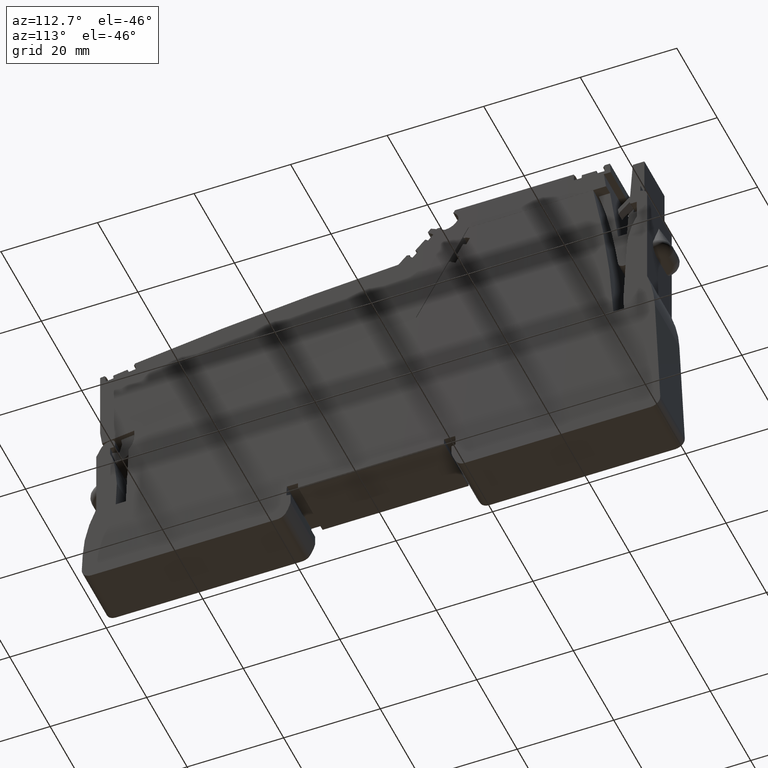
[diagram: clean part render]
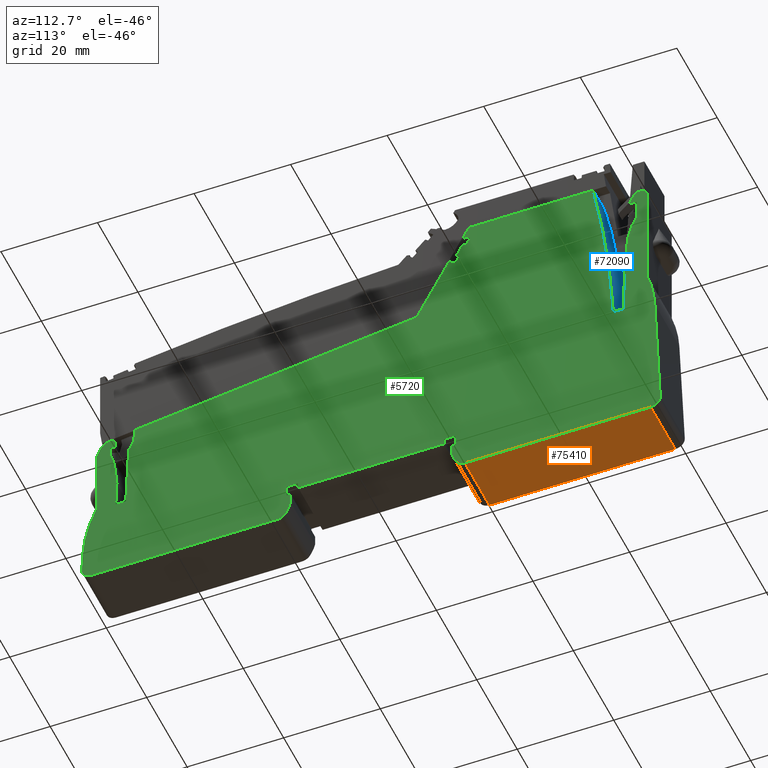
[diagram: same view with three faces highlighted in distinct colors, each labeled with its STEP entity id]
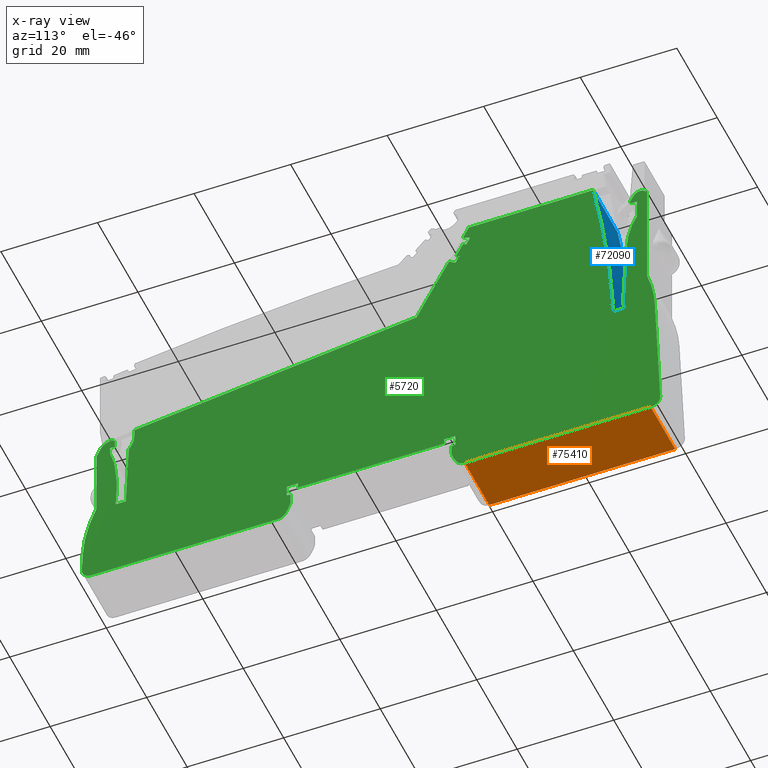
[diagram: x-ray of the same camera — body ghosted, the three highlighted faces saturated]
A machine part, auxiliary view with three faces highlighted in distinct colors.
The next image is the same camera in x-ray (body ghosted, the three faces saturated) — at least one of them is partly hidden behind the body in this view.
Their STEP definitions:

[orange] entity #75410 — the highlighted planar face has unit normal (-0, 0, 1).
#2520=CARTESIAN_POINT('',(294.439392952716,-62.9542780967925,36.45));
#2530=VERTEX_POINT('',#2520);
#2560=CARTESIAN_POINT('',(217.456642799386,-62.9542780967925,36.45));
#2570=DIRECTION('',(1.,0.,0.));
#2580=VECTOR('',#2570,1.);
#2590=LINE('',#2560,#2580);
#2600=CARTESIAN_POINT('',(255.962554944728,-62.9542780967925,36.45));
#2610=VERTEX_POINT('',#2600);
#2620=EDGE_CURVE('',#2610,#2530,#2590,.T.);
#11300=CARTESIAN_POINT('',(255.962554944728,-62.9542780967925,24.3));
#11310=VERTEX_POINT('',#11300);
#11340=CARTESIAN_POINT('',(5.6843418860808E-14,-62.9542780967925,24.3));
#11350=DIRECTION('',(1.,0.,0.));
#11360=VECTOR('',#11350,1.);
#11370=LINE('',#11340,#11360);
#11380=CARTESIAN_POINT('',(294.439392952716,-62.9542780967925,24.3));
#11390=VERTEX_POINT('',#11380);
#11400=EDGE_CURVE('',#11310,#11390,#11370,.T.);
#74100=CARTESIAN_POINT('',(294.439392952716,-62.9542780967925,24.3));
#74110=DIRECTION('',(0.,1.19110369467609E-44,1.));
#74120=VECTOR('',#74110,1.);
#74130=LINE('',#74100,#74120);
#74140=EDGE_CURVE('',#11390,#2530,#74130,.T.);
#75060=CARTESIAN_POINT('',(255.962554944728,-62.9542780967925,24.3));
#75070=DIRECTION('',(0.,1.19110369467609E-44,1.));
#75080=VECTOR('',#75070,1.);
#75090=LINE('',#75060,#75080);
#75100=EDGE_CURVE('',#11310,#2610,#75090,.T.);
#75300=CARTESIAN_POINT('',(255.962554944728,-62.9542780967925,24.3));
#75310=DIRECTION('',(0.,1.,-1.19110369467609E-44));
#75320=DIRECTION('',(-1.,0.,0.));
#75330=AXIS2_PLACEMENT_3D('',#75300,#75310,#75320);
#75340=PLANE('',#75330);
#75350=ORIENTED_EDGE('',*,*,#11400,.T.);
#75360=ORIENTED_EDGE('',*,*,#75100,.F.);
#75370=ORIENTED_EDGE('',*,*,#2620,.F.);
#75380=ORIENTED_EDGE('',*,*,#74140,.T.);
#75390=EDGE_LOOP('',(#75380,#75370,#75360,#75350));
#75400=FACE_OUTER_BOUND('',#75390,.T.);
#75410=ADVANCED_FACE('',(#75400),#75340,.F.);

[blue] entity #72090 — the highlighted cylindrical surface (partial cylindrical patch) has radius 244.2 mm, axis along (1, 0, 0).
#1340=CARTESIAN_POINT('',(282.529908005194,1.44572190319565,36.45));
#1350=VERTEX_POINT('',#1340);
#1380=CARTESIAN_POINT('',(42.7786202088592,-44.954278096795,36.45));
#1390=DIRECTION('',(0.,1.19110369467609E-44,1.));
#1400=DIRECTION('',(1.,1.05193631583234E-14,-1.25296523235185E-58));
#1410=AXIS2_PLACEMENT_3D('',#1380,#1390,#1400);
#1420=CIRCLE('',#1410,244.2);
#1430=CARTESIAN_POINT('',(286.717034567893,-33.6542780967924,36.45));
#1440=VERTEX_POINT('',#1430);
#1450=EDGE_CURVE('',#1440,#1350,#1420,.T.);
#6830=CARTESIAN_POINT('',(286.717034567893,-33.6542780967924,24.3));
#6840=VERTEX_POINT('',#6830);
#6870=CARTESIAN_POINT('',(42.7786202088592,-44.954278096795,24.3));
#6880=DIRECTION('',(0.,1.19110369467609E-44,1.));
#6890=DIRECTION('',(1.,1.05193631583234E-14,-1.25296523235185E-58));
#6900=AXIS2_PLACEMENT_3D('',#6870,#6880,#6890);
#6910=CIRCLE('',#6900,244.2);
#6920=CARTESIAN_POINT('',(282.529908005194,1.44572190319566,24.3));
#6930=VERTEX_POINT('',#6920);
#6940=EDGE_CURVE('',#6840,#6930,#6910,.T.);
#71750=CARTESIAN_POINT('',(282.529908005194,1.44572190319566,24.3));
#71760=DIRECTION('',(0.,1.19110369467609E-44,1.));
#71770=VECTOR('',#71760,1.);
#71780=LINE('',#71750,#71770);
#71790=EDGE_CURVE('',#6930,#1350,#71780,.T.);
#71930=CARTESIAN_POINT('',(42.7786202088592,-44.954278096795,24.3));
#71940=DIRECTION('',(0.,1.19110369467609E-44,1.));
#71950=DIRECTION('',(1.,1.05193631583234E-14,-1.25296523235185E-58));
#71960=AXIS2_PLACEMENT_3D('',#71930,#71940,#71950);
#71970=CYLINDRICAL_SURFACE('',#71960,244.2);
#71980=ORIENTED_EDGE('',*,*,#6940,.T.);
#71990=CARTESIAN_POINT('',(286.717034567893,-33.6542780967924,24.3));
#72000=DIRECTION('',(0.,1.19110369467609E-44,1.));
#72010=VECTOR('',#72000,1.);
#72020=LINE('',#71990,#72010);
#72030=EDGE_CURVE('',#6840,#1440,#72020,.T.);
#72040=ORIENTED_EDGE('',*,*,#72030,.F.);
#72050=ORIENTED_EDGE('',*,*,#1450,.F.);
#72060=ORIENTED_EDGE('',*,*,#71790,.T.);
#72070=EDGE_LOOP('',(#72060,#72050,#72040,#71980));
#72080=FACE_OUTER_BOUND('',#72070,.T.);
#72090=ADVANCED_FACE('',(#72080),#71970,.T.);

[green] entity #5720 — the highlighted planar face has unit normal (1, 0, 0).
#10=CARTESIAN_POINT('',(250.551745894944,-13.6190661492394,36.45));
#20=DIRECTION('',(-0.,0.,1.));
#30=DIRECTION('',(1.,-1.05193631583234E-14,0.));
#40=AXIS2_PLACEMENT_3D('',#10,#20,#30);
#50=PLANE('',#40);
#60=CARTESIAN_POINT('',(222.829193999581,-62.4038624519245,36.45));
#70=DIRECTION('',(-0.469471562785816,-0.882947592858967,
1.05168214005968E-44));
#80=VECTOR('',#70,1.);
#90=LINE('',#60,#80);
#100=CARTESIAN_POINT('',(252.619553665123,-6.3763446167434,36.45));
#110=VERTEX_POINT('',#100);
#120=CARTESIAN_POINT('',(245.956559916687,-18.9076132978659,36.45));
#130=VERTEX_POINT('',#120);
#140=EDGE_CURVE('',#110,#130,#90,.T.);
#150=ORIENTED_EDGE('',*,*,#140,.T.);
#160=CARTESIAN_POINT('',(217.456642799385,-7.60426052174302,36.45));
#170=DIRECTION('',(-0.999390827019097,-0.0348994967024531,
4.15689194646281E-46));
#180=VECTOR('',#170,1.);
#190=LINE('',#160,#180);
#200=CARTESIAN_POINT('',(252.971522788557,-6.36405358411578,36.45));
#210=VERTEX_POINT('',#200);
#220=EDGE_CURVE('',#210,#110,#190,.T.);
#230=ORIENTED_EDGE('',*,*,#220,.T.);
#240=CARTESIAN_POINT('',(252.976757713062,-6.51396220816862,36.45));
#250=DIRECTION('',(0.,1.19110369467609E-44,1.));
#260=DIRECTION('',(1.,1.05193631583234E-14,-1.25296523235185E-58));
#270=AXIS2_PLACEMENT_3D('',#240,#250,#260);
#280=CIRCLE('',#270,0.149999999999978);
#290=CARTESIAN_POINT('',(253.109199851991,-6.58438294258651,36.45));
#300=VERTEX_POINT('',#290);
#310=EDGE_CURVE('',#300,#210,#280,.T.);
#320=ORIENTED_EDGE('',*,*,#310,.T.);
#330=CARTESIAN_POINT('',(223.429456126324,-62.4038624519245,36.45));
#340=DIRECTION('',(0.469471562787342,0.882947592858155,
-1.05168214005871E-44));
#350=VECTOR('',#340,1.);
#360=LINE('',#330,#350);
#370=CARTESIAN_POINT('',(253.103331457456,-6.59541978749719,36.45));
#380=VERTEX_POINT('',#370);
#390=EDGE_CURVE('',#380,#300,#360,.T.);
#400=ORIENTED_EDGE('',*,*,#390,.T.);
#410=CARTESIAN_POINT('',(217.456642799385,12.3582607794984,36.45));
#420=DIRECTION('',(-0.882947592858936,0.469471562785873,
-5.59189312979613E-45));
#430=VECTOR('',#420,1.);
#440=LINE('',#410,#430);
#450=CARTESIAN_POINT('',(254.048085381815,-7.09775435967803,36.45));
#460=VERTEX_POINT('',#450);
#470=EDGE_CURVE('',#460,#380,#440,.T.);
#480=ORIENTED_EDGE('',*,*,#470,.T.);
#490=CARTESIAN_POINT('',(224.641306080665,-62.4038624519244,36.45));
#500=DIRECTION('',(-0.469471562786055,-0.88294759285884,
1.05168214005953E-44));
#510=VECTOR('',#500,1.);
#520=LINE('',#490,#510);
#530=CARTESIAN_POINT('',(254.797776775253,-5.68778991519738,36.45));
#540=VERTEX_POINT('',#530);
#550=EDGE_CURVE('',#540,#460,#520,.T.);
#560=ORIENTED_EDGE('',*,*,#550,.T.);
#570=CARTESIAN_POINT('',(217.456642799385,18.5618260273502,36.45));
#580=DIRECTION('',(0.838670567945287,-0.544639035015238,
6.48721566871473E-45));
#590=VECTOR('',#580,1.);
#600=LINE('',#570,#590);
#610=CARTESIAN_POINT('',(254.166371160303,-5.27775031446077,36.45));
#620=VERTEX_POINT('',#610);
#630=EDGE_CURVE('',#620,#540,#600,.T.);
#640=ORIENTED_EDGE('',*,*,#630,.T.);
#650=CARTESIAN_POINT('',(223.791878542665,-62.4038624519245,36.45));
#660=DIRECTION('',(-0.469471562785848,-0.88294759285895,
1.05168214005966E-44));
#670=VECTOR('',#660,1.);
#680=LINE('',#650,#670);
#690=CARTESIAN_POINT('',(255.57478584866,-2.62890753588397,36.45));
#700=VERTEX_POINT('',#690);
#710=EDGE_CURVE('',#700,#620,#680,.T.);
#720=ORIENTED_EDGE('',*,*,#710,.T.);
#730=CARTESIAN_POINT('',(217.456642799385,13.551284229208,36.45));
#740=DIRECTION('',(-0.920504853452444,0.390731128489265,
-4.65401290768523E-45));
#750=VECTOR('',#740,1.);
#760=LINE('',#730,#750);
#770=CARTESIAN_POINT('',(256.267801622998,-2.92307527932637,36.45));
#780=VERTEX_POINT('',#770);
#790=EDGE_CURVE('',#780,#700,#760,.T.);
#800=ORIENTED_EDGE('',*,*,#790,.T.);
#810=CARTESIAN_POINT('',(224.641306080672,-62.4038624519244,36.45));
#820=DIRECTION('',(-0.469471562785964,-0.882947592858888,
1.05168214005959E-44));
#830=VECTOR('',#820,1.);
#840=LINE('',#810,#830);
#850=CARTESIAN_POINT('',(257.017493016436,-1.51311083484534,36.45));
#860=VERTEX_POINT('',#850);
#870=EDGE_CURVE('',#860,#780,#840,.T.);
#880=ORIENTED_EDGE('',*,*,#870,.T.);
#890=CARTESIAN_POINT('',(217.456642799385,19.5217663500998,36.45));
#900=DIRECTION('',(0.882947592859,-0.469471562785753,
5.59189312979471E-45));
#910=VECTOR('',#900,1.);
#920=LINE('',#890,#910);
#930=CARTESIAN_POINT('',(256.072739092077,-1.01077626266459,36.45));
#940=VERTEX_POINT('',#930);
#950=EDGE_CURVE('',#940,#860,#920,.T.);
#960=ORIENTED_EDGE('',*,*,#950,.T.);
#970=CARTESIAN_POINT('',(223.429456126156,-62.4038624519245,36.45));
#980=DIRECTION('',(0.469471562789092,0.882947592857225,
-1.0516821400576E-44));
#990=VECTOR('',#980,1.);
#1000=LINE('',#970,#990);
#1010=CARTESIAN_POINT('',(256.066870697542,-1.02181310757526,36.45));
#1020=VERTEX_POINT('',#1010);
#1030=EDGE_CURVE('',#1020,#940,#1000,.T.);
#1040=ORIENTED_EDGE('',*,*,#1030,.T.);
#1050=CARTESIAN_POINT('',(255.934428558613,-0.951392373157361,36.45));
#1060=DIRECTION('',(0.,1.19110369467609E-44,1.));
#1070=DIRECTION('',(1.,1.05193631583234E-14,-1.25296523235185E-58));
#1080=AXIS2_PLACEMENT_3D('',#1050,#1060,#1070);
#1090=CIRCLE('',#1080,0.150000000000037);
#1100=CARTESIAN_POINT('',(255.80722134419,-1.03088026279237,36.45));
#1110=VERTEX_POINT('',#1100);
#1120=EDGE_CURVE('',#1110,#1020,#1090,.T.);
#1130=ORIENTED_EDGE('',*,*,#1120,.T.);
#1140=CARTESIAN_POINT('',(294.157316949414,-62.4038624519237,36.45));
#1150=DIRECTION('',(0.529919264232796,-0.848048096156682,
1.01011322059525E-44));
#1160=VECTOR('',#1150,1.);
#1170=LINE('',#1140,#1160);
#1180=CARTESIAN_POINT('',(255.620592435979,-0.732211576865332,36.45));
#1190=VERTEX_POINT('',#1180);
#1200=EDGE_CURVE('',#1190,#1110,#1170,.T.);
#1210=ORIENTED_EDGE('',*,*,#1200,.T.);
#1220=CARTESIAN_POINT('',(222.829193999575,-62.4038624519245,36.45));
#1230=DIRECTION('',(-0.469471562785901,-0.882947592858922,
1.05168214005963E-44));
#1240=VECTOR('',#1230,1.);
#1250=LINE('',#1220,#1240);
#1260=CARTESIAN_POINT('',(256.778620208859,1.44572190319565,36.45));
#1270=VERTEX_POINT('',#1260);
#1280=EDGE_CURVE('',#1270,#1190,#1250,.T.);
#1290=ORIENTED_EDGE('',*,*,#1280,.T.);
#1300=CARTESIAN_POINT('',(217.456642799385,1.44572190319565,36.45));
#1310=DIRECTION('',(-1.,0.,0.));
#1320=VECTOR('',#1310,1.);
#1330=LINE('',#1300,#1320);
#1340=CARTESIAN_POINT('',(282.529908005194,1.44572190319565,36.45));
#1350=VERTEX_POINT('',#1340);
#1360=EDGE_CURVE('',#1350,#1270,#1330,.T.);
#1370=ORIENTED_EDGE('',*,*,#1360,.T.);
#1380=CARTESIAN_POINT('',(42.7786202088592,-44.954278096795,36.45));
#1390=DIRECTION('',(0.,1.19110369467609E-44,1.));
#1400=DIRECTION('',(1.,1.05193631583234E-14,-1.25296523235185E-58));
#1410=AXIS2_PLACEMENT_3D('',#1380,#1390,#1400);
#1420=CIRCLE('',#1410,244.2);
#1430=CARTESIAN_POINT('',(286.717034567893,-33.6542780967924,36.45));
#1440=VERTEX_POINT('',#1430);
#1450=EDGE_CURVE('',#1440,#1350,#1420,.T.);
#1460=ORIENTED_EDGE('',*,*,#1450,.T.);
#1470=CARTESIAN_POINT('',(217.456642799386,-33.6542780967924,36.45));
#1480=DIRECTION('',(-1.,0.,0.));
#1490=VECTOR('',#1480,1.);
#1500=LINE('',#1470,#1490);
#1510=CARTESIAN_POINT('',(288.89935458164,-33.6542780967924,36.45));
#1520=VERTEX_POINT('',#1510);
#1530=EDGE_CURVE('',#1520,#1440,#1500,.T.);
#1540=ORIENTED_EDGE('',*,*,#1530,.T.);
#1550=CARTESIAN_POINT('',(290.154588542814,-62.4038624519238,36.45));
#1560=DIRECTION('',(0.0436193873653793,-0.999048221581856,
1.18997002788573E-44));
#1570=VECTOR('',#1560,1.);
#1580=LINE('',#1550,#1570);
#1590=CARTESIAN_POINT('',(288.781470035787,-30.9542780967934,36.45));
#1600=VERTEX_POINT('',#1590);
#1610=EDGE_CURVE('',#1600,#1520,#1580,.T.);
#1620=ORIENTED_EDGE('',*,*,#1610,.T.);
#1630=CARTESIAN_POINT('',(287.214385619435,-62.4038624519238,36.45));
#1640=DIRECTION('',(-0.0497667179338586,-0.99876086917044,
1.18962776136682E-44));
#1650=VECTOR('',#1640,1.);
#1660=LINE('',#1630,#1650);
#1670=CARTESIAN_POINT('',(289.495566915125,-16.6231739072968,36.45));
#1680=VERTEX_POINT('',#1670);
#1690=EDGE_CURVE('',#1680,#1600,#1660,.T.);
#1700=ORIENTED_EDGE('',*,*,#1690,.T.);
#1710=CARTESIAN_POINT('',(306.174873430273,-17.4542780967923,36.45));
#1720=DIRECTION('',(0.,1.19110369467609E-44,1.));
#1730=DIRECTION('',(1.,0.,0.));
#1740=AXIS2_PLACEMENT_3D('',#1710,#1720,#1730);
#1750=CIRCLE('',#1740,16.6999999999999);
#1760=CARTESIAN_POINT('',(291.578620208859,-9.34013045847767,36.45));
#1770=VERTEX_POINT('',#1760);
#1780=EDGE_CURVE('',#1770,#1680,#1750,.T.);
#1790=ORIENTED_EDGE('',*,*,#1780,.T.);
#1800=CARTESIAN_POINT('',(291.578620208859,-62.4038624519237,36.45));
#1810=DIRECTION('',(0.,-1.,1.19110369467609E-44));
#1820=VECTOR('',#1810,1.);
#1830=LINE('',#1800,#1820);
#1840=CARTESIAN_POINT('',(291.578620208859,-5.35427809679246,36.45));
#1850=VERTEX_POINT('',#1840);
#1860=EDGE_CURVE('',#1850,#1770,#1830,.T.);
#1870=ORIENTED_EDGE('',*,*,#1860,.T.);
#1880=CARTESIAN_POINT('',(217.456642799385,-5.35427809679246,36.45));
#1890=DIRECTION('',(1.,0.,0.));
#1900=VECTOR('',#1890,1.);
#1910=LINE('',#1880,#1900);
#1920=CARTESIAN_POINT('',(290.512594805074,-5.35427809679246,36.45));
#1930=VERTEX_POINT('',#1920);
#1940=EDGE_CURVE('',#1930,#1850,#1910,.T.);
#1950=ORIENTED_EDGE('',*,*,#1940,.T.);
#1960=CARTESIAN_POINT('',(290.512594805074,-4.95427809679246,36.45));
#1970=DIRECTION('',(0.,1.19110369467609E-44,1.));
#1980=DIRECTION('',(1.,0.,0.));
#1990=AXIS2_PLACEMENT_3D('',#1960,#1970,#1980);
#2000=CIRCLE('',#1990,0.4);
#2010=CARTESIAN_POINT('',(290.166184643561,-4.75427809679242,36.45));
#2020=VERTEX_POINT('',#2010);
#2030=EDGE_CURVE('',#2020,#1930,#2000,.T.);
#2040=ORIENTED_EDGE('',*,*,#2030,.T.);
#2050=CARTESIAN_POINT('',(256.88218159745,-62.4038624519241,36.45));
#2060=DIRECTION('',(-0.500000000000064,-0.866025403784402,
1.03152605813096E-44));
#2070=VECTOR('',#2060,1.);
#2080=LINE('',#2050,#2070);
#2090=CARTESIAN_POINT('',(290.948540359412,-3.39919824734572,36.45));
#2100=VERTEX_POINT('',#2090);
#2110=EDGE_CURVE('',#2100,#2020,#2080,.T.);
#2120=ORIENTED_EDGE('',*,*,#2110,.T.);
#2130=CARTESIAN_POINT('',(292.238779907752,-4.14411839789921,36.45));
#2140=DIRECTION('',(0.,1.19110369467609E-44,1.));
#2150=DIRECTION('',(1.,0.,0.));
#2160=AXIS2_PLACEMENT_3D('',#2130,#2140,#2150);
#2170=CIRCLE('',#2160,1.48984030110678);
#2180=CARTESIAN_POINT('',(293.728620208859,-4.14411839789921,36.45));
#2190=VERTEX_POINT('',#2180);
#2200=EDGE_CURVE('',#2190,#2100,#2170,.T.);
#2210=ORIENTED_EDGE('',*,*,#2200,.T.);
#2220=CARTESIAN_POINT('',(293.728620208859,-62.4038624519237,36.45));
#2230=DIRECTION('',(0.,1.,-1.19110369467609E-44));
#2240=VECTOR('',#2230,1.);
#2250=LINE('',#2220,#2240);
#2260=CARTESIAN_POINT('',(293.728620208859,-26.6633289582232,36.45));
#2270=VERTEX_POINT('',#2260);
#2280=EDGE_CURVE('',#2270,#2190,#2250,.T.);
#2290=ORIENTED_EDGE('',*,*,#2280,.T.);
#2300=CARTESIAN_POINT('',(265.338905386229,-36.3599310584282,36.45));
#2310=DIRECTION('',(0.,1.19110369467609E-44,1.));
#2320=DIRECTION('',(1.,0.,0.));
#2330=AXIS2_PLACEMENT_3D('',#2300,#2310,#2320);
#2340=CIRCLE('',#2330,29.9999999999995);
#2350=CARTESIAN_POINT('',(295.310352033684,-35.0513494374681,36.45));
#2360=VERTEX_POINT('',#2350);
#2370=EDGE_CURVE('',#2360,#2270,#2340,.T.);
#2380=ORIENTED_EDGE('',*,*,#2370,.T.);
#2390=CARTESIAN_POINT('',(296.504588542813,-62.4038624519237,36.45));
#2400=DIRECTION('',(-0.0436193873653358,0.999048221581858,
-1.18997002788573E-44));
#2410=VECTOR('',#2400,1.);
#2420=LINE('',#2390,#2410);
#2430=CARTESIAN_POINT('',(296.437489395879,-60.8670393220619,36.45));
#2440=VERTEX_POINT('',#2430);
#2450=EDGE_CURVE('',#2440,#2360,#2420,.T.);
#2460=ORIENTED_EDGE('',*,*,#2450,.T.);
#2470=CARTESIAN_POINT('',(294.439392952716,-60.9542780967925,36.45));
#2480=DIRECTION('',(0.,-1.19110369467609E-44,-1.));
#2490=DIRECTION('',(-1.,0.,0.));
#2500=AXIS2_PLACEMENT_3D('',#2470,#2480,#2490);
#2510=CIRCLE('',#2500,2.);
#2520=CARTESIAN_POINT('',(294.439392952716,-62.9542780967925,36.45));
#2530=VERTEX_POINT('',#2520);
#2540=EDGE_CURVE('',#2440,#2530,#2510,.T.);
#2550=ORIENTED_EDGE('',*,*,#2540,.F.);
#2560=CARTESIAN_POINT('',(217.456642799386,-62.9542780967925,36.45));
#2570=DIRECTION('',(1.,0.,0.));
#2580=VECTOR('',#2570,1.);
#2590=LINE('',#2560,#2580);
#2600=CARTESIAN_POINT('',(255.962554944728,-62.9542780967925,36.45));
#2610=VERTEX_POINT('',#2600);
#2620=EDGE_CURVE('',#2610,#2530,#2590,.T.);
#2630=ORIENTED_EDGE('',*,*,#2620,.T.);
#2640=CARTESIAN_POINT('',(255.962554944728,-60.9542780967925,36.45));
#2650=DIRECTION('',(0.,1.19110369467609E-44,1.));
#2660=DIRECTION('',(1.,0.,0.));
#2670=AXIS2_PLACEMENT_3D('',#2640,#2650,#2660);
#2680=CIRCLE('',#2670,2.);
#2690=CARTESIAN_POINT('',(254.238270874293,-61.9676114301258,36.45));
#2700=VERTEX_POINT('',#2690);
#2710=EDGE_CURVE('',#2700,#2610,#2680,.T.);
#2720=ORIENTED_EDGE('',*,*,#2710,.T.);
#2730=CARTESIAN_POINT('',(262.428620208859,-57.1542780967929,36.45));
#2740=DIRECTION('',(0.,1.19110369467609E-44,1.));
#2750=DIRECTION('',(1.,0.,0.));
#2760=AXIS2_PLACEMENT_3D('',#2730,#2740,#2750);
#2770=CIRCLE('',#2760,9.5);
#2780=CARTESIAN_POINT('',(253.178620208859,-59.3193416062542,36.45));
#2790=VERTEX_POINT('',#2780);
#2800=EDGE_CURVE('',#2790,#2700,#2770,.T.);
#2810=ORIENTED_EDGE('',*,*,#2800,.T.);
#2820=CARTESIAN_POINT('',(253.178620208859,-62.4038624519241,36.45));
#2830=DIRECTION('',(0.,-1.,1.19110369467609E-44));
#2840=VECTOR('',#2830,1.);
#2850=LINE('',#2820,#2840);
#2860=CARTESIAN_POINT('',(253.178620208859,-57.2709062822754,36.45));
#2870=VERTEX_POINT('',#2860);
#2880=EDGE_CURVE('',#2870,#2790,#2850,.T.);
#2890=ORIENTED_EDGE('',*,*,#2880,.T.);
#2900=CARTESIAN_POINT('',(217.456642799386,-64.2145552941398,36.45));
#2910=DIRECTION('',(-0.981627183447662,-0.190808995376554,
2.27273299370448E-45));
#2920=VECTOR('',#2910,1.);
#2930=LINE('',#2900,#2920);
#2940=CARTESIAN_POINT('',(254.028620208859,-57.1056830195084,36.45));
#2950=VERTEX_POINT('',#2940);
#2960=EDGE_CURVE('',#2950,#2870,#2930,.T.);
#2970=ORIENTED_EDGE('',*,*,#2960,.T.);
#2980=CARTESIAN_POINT('',(254.028620208859,-62.4038624519241,36.45));
#2990=DIRECTION('',(0.,-1.,1.19110369467609E-44));
#3000=VECTOR('',#2990,1.);
#3010=LINE('',#2980,#3000);
#3020=CARTESIAN_POINT('',(254.028620208859,-55.9542780967929,36.45));
#3030=VERTEX_POINT('',#3020);
#3040=EDGE_CURVE('',#3030,#2950,#3010,.T.);
#3050=ORIENTED_EDGE('',*,*,#3040,.T.);
#3060=CARTESIAN_POINT('',(245.528620208859,-55.9542780967929,36.45));
#3070=DIRECTION('',(0.,1.19110369467609E-44,1.));
#3080=DIRECTION('',(1.,1.05193631583234E-14,-1.25296523235185E-58));
#3090=AXIS2_PLACEMENT_3D('',#3060,#3070,#3080);
#3100=CIRCLE('',#3090,8.50000000000005);
#3110=CARTESIAN_POINT('',(253.943488003424,-54.7542780967928,36.45));
#3120=VERTEX_POINT('',#3110);
#3130=EDGE_CURVE('',#3030,#3120,#3100,.T.);
#3140=ORIENTED_EDGE('',*,*,#3130,.F.);
#3150=CARTESIAN_POINT('',(0.,-54.7542780967928,36.45));
#3160=DIRECTION('',(1.,1.49241151755498E-102,0.));
#3170=VECTOR('',#3160,1.);
#3180=LINE('',#3150,#3170);
#3190=CARTESIAN_POINT('',(251.653620208859,-54.7542780967928,36.45));
#3200=VERTEX_POINT('',#3190);
#3210=EDGE_CURVE('',#3200,#3120,#3180,.T.);
#3220=ORIENTED_EDGE('',*,*,#3210,.T.);
#3230=CARTESIAN_POINT('',(251.653620208859,-62.4038624519242,36.45));
#3240=DIRECTION('',(-1.05193631583234E-14,1.,-1.19110369467609E-44));
#3250=VECTOR('',#3240,1.);
#3260=LINE('',#3230,#3250);
#3270=CARTESIAN_POINT('',(251.653620208859,-55.9542780967928,36.45));
#3280=VERTEX_POINT('',#3270);
#3290=EDGE_CURVE('',#3280,#3200,#3260,.T.);
#3300=ORIENTED_EDGE('',*,*,#3290,.T.);
#3310=CARTESIAN_POINT('',(217.456642799386,-55.9542780967932,36.45));
#3320=DIRECTION('',(1.,1.05193631583234E-14,-1.25296523235185E-58));
#3330=VECTOR('',#3320,1.);
#3340=LINE('',#3310,#3330);
#3350=CARTESIAN_POINT('',(221.403620208859,-55.9542780967931,36.45));
#3360=VERTEX_POINT('',#3350);
#3370=EDGE_CURVE('',#3360,#3280,#3340,.T.);
#3380=ORIENTED_EDGE('',*,*,#3370,.T.);
#3390=CARTESIAN_POINT('',(221.403620208859,-62.4038624519245,36.45));
#3400=DIRECTION('',(1.05193631583234E-14,-1.,1.19110369467609E-44));
#3410=VECTOR('',#3400,1.);
#3420=LINE('',#3390,#3410);
#3430=CARTESIAN_POINT('',(221.403620208859,-54.7542780967931,36.45));
#3440=VERTEX_POINT('',#3430);
#3450=EDGE_CURVE('',#3440,#3360,#3420,.T.);
#3460=ORIENTED_EDGE('',*,*,#3450,.T.);
#3470=CARTESIAN_POINT('',(0.,-54.7542780967937,36.45));
#3480=DIRECTION('',(1.,1.49241151755498E-102,0.));
#3490=VECTOR('',#3480,1.);
#3500=LINE('',#3470,#3490);
#3510=CARTESIAN_POINT('',(219.113752414295,-54.7542780967937,36.45));
#3520=VERTEX_POINT('',#3510);
#3530=EDGE_CURVE('',#3520,#3440,#3500,.T.);
#3540=ORIENTED_EDGE('',*,*,#3530,.T.);
#3550=CARTESIAN_POINT('',(227.528620208859,-55.9542780967931,36.45));
#3560=DIRECTION('',(0.,1.19110369467609E-44,1.));
#3570=DIRECTION('',(1.,1.05193631583234E-14,-1.25296523235185E-58));
#3580=AXIS2_PLACEMENT_3D('',#3550,#3560,#3570);
#3590=CIRCLE('',#3580,8.49999999999999);
#3600=CARTESIAN_POINT('',(219.028620208859,-55.9542780967931,36.45));
#3610=VERTEX_POINT('',#3600);
#3620=EDGE_CURVE('',#3520,#3610,#3590,.T.);
#3630=ORIENTED_EDGE('',*,*,#3620,.F.);
#3640=CARTESIAN_POINT('',(219.028620208859,-62.4038624519245,36.45));
#3650=DIRECTION('',(0.,1.,-1.19110369467609E-44));
#3660=VECTOR('',#3650,1.);
#3670=LINE('',#3640,#3660);
#3680=CARTESIAN_POINT('',(219.028620208859,-57.1056830195087,36.45));
#3690=VERTEX_POINT('',#3680);
#3700=EDGE_CURVE('',#3690,#3610,#3670,.T.);
#3710=ORIENTED_EDGE('',*,*,#3700,.T.);
#3720=CARTESIAN_POINT('',(217.456642799386,-56.8001215646977,36.45));
#3730=DIRECTION('',(-0.98162718344766,0.190808995376566,
-2.27273299370461E-45));
#3740=VECTOR('',#3730,1.);
#3750=LINE('',#3720,#3740);
#3760=CARTESIAN_POINT('',(219.878620208859,-57.2709062822758,36.45));
#3770=VERTEX_POINT('',#3760);
#3780=EDGE_CURVE('',#3770,#3690,#3750,.T.);
#3790=ORIENTED_EDGE('',*,*,#3780,.T.);
#3800=CARTESIAN_POINT('',(219.878620208859,-62.4038624519245,36.45));
#3810=DIRECTION('',(0.,1.,-1.19110369467609E-44));
#3820=VECTOR('',#3810,1.);
#3830=LINE('',#3800,#3820);
#3840=CARTESIAN_POINT('',(219.878620208859,-59.3193416062538,36.45));
#3850=VERTEX_POINT('',#3840);
#3860=EDGE_CURVE('',#3850,#3770,#3830,.T.);
#3870=ORIENTED_EDGE('',*,*,#3860,.T.);
#3880=CARTESIAN_POINT('',(210.628620208859,-57.1542780967929,36.45));
#3890=DIRECTION('',(0.,-1.19110369467609E-44,-1.));
#3900=DIRECTION('',(-1.,0.,0.));
#3910=AXIS2_PLACEMENT_3D('',#3880,#3890,#3900);
#3920=CIRCLE('',#3910,9.5);
#3930=CARTESIAN_POINT('',(218.818969543425,-61.9676114301258,36.45));
#3940=VERTEX_POINT('',#3930);
#3950=EDGE_CURVE('',#3850,#3940,#3920,.T.);
#3960=ORIENTED_EDGE('',*,*,#3950,.F.);
#3970=CARTESIAN_POINT('',(217.09468547299,-60.9542780967925,36.45));
#3980=DIRECTION('',(0.,-1.19110369467609E-44,-1.));
#3990=DIRECTION('',(-1.,0.,0.));
#4000=AXIS2_PLACEMENT_3D('',#3970,#3980,#3990);
#4010=CIRCLE('',#4000,2.);
#4020=CARTESIAN_POINT('',(217.09468547299,-62.9542780967929,36.45));
#4030=VERTEX_POINT('',#4020);
#4040=EDGE_CURVE('',#3940,#4030,#4010,.T.);
#4050=ORIENTED_EDGE('',*,*,#4040,.F.);
#4060=CARTESIAN_POINT('',(217.456642799386,-62.9542780967929,36.45));
#4070=DIRECTION('',(1.,0.,0.));
#4080=VECTOR('',#4070,1.);
#4090=LINE('',#4060,#4080);
#4100=CARTESIAN_POINT('',(178.617847465003,-62.9542780967929,36.45));
#4110=VERTEX_POINT('',#4100);
#4120=EDGE_CURVE('',#4110,#4030,#4090,.T.);
#4130=ORIENTED_EDGE('',*,*,#4120,.T.);
#4140=CARTESIAN_POINT('',(178.617847465003,-60.9542780967929,36.45));
#4150=DIRECTION('',(0.,-1.19110369467609E-44,-1.));
#4160=DIRECTION('',(-1.,-1.05193631583234E-14,1.25296523235185E-58));
#4170=AXIS2_PLACEMENT_3D('',#4140,#4150,#4160);
#4180=CIRCLE('',#4170,2.);
#4190=CARTESIAN_POINT('',(176.619751021839,-60.8670393220622,36.45));
#4200=VERTEX_POINT('',#4190);
#4210=EDGE_CURVE('',#4110,#4200,#4180,.T.);
#4220=ORIENTED_EDGE('',*,*,#4210,.F.);
#4230=CARTESIAN_POINT('',(176.552651874906,-62.403862451925,36.45));
#4240=DIRECTION('',(-0.0436193873653827,-0.999048221581856,
1.18997002788573E-44));
#4250=VECTOR('',#4240,1.);
#4260=LINE('',#4230,#4250);
#4270=CARTESIAN_POINT('',(176.802689507967,-56.6770591260145,36.45));
#4280=VERTEX_POINT('',#4270);
#4290=EDGE_CURVE('',#4280,#4200,#4260,.T.);
#4300=ORIENTED_EDGE('',*,*,#4290,.T.);
#4310=CARTESIAN_POINT('',(206.774136155416,-57.9856407469757,36.45));
#4320=DIRECTION('',(0.,1.19110369467609E-44,1.));
#4330=DIRECTION('',(1.,0.,0.));
#4340=AXIS2_PLACEMENT_3D('',#4310,#4320,#4330);
#4350=CIRCLE('',#4340,29.9999999999933);
#4360=CARTESIAN_POINT('',(179.617847465003,-45.2366806104567,36.45));
#4370=VERTEX_POINT('',#4360);
#4380=EDGE_CURVE('',#4370,#4280,#4350,.T.);
#4390=ORIENTED_EDGE('',*,*,#4380,.T.);
#4400=CARTESIAN_POINT('',(179.617847465003,-62.4038624519249,36.45));
#4410=DIRECTION('',(0.,-1.,1.19110369467609E-44));
#4420=VECTOR('',#4410,1.);
#4430=LINE('',#4400,#4420);
#4440=CARTESIAN_POINT('',(179.617847465003,-30.8305420435832,36.45));
#4450=VERTEX_POINT('',#4440);
#4460=EDGE_CURVE('',#4450,#4370,#4430,.T.);
#4470=ORIENTED_EDGE('',*,*,#4460,.T.);
#4480=CARTESIAN_POINT('',(164.248217843791,-62.4038624519251,36.45));
#4490=DIRECTION('',(-0.437687596700824,-0.899127114313798,
1.07095362784262E-44));
#4500=VECTOR('',#4490,1.);
#4510=LINE('',#4480,#4500);
#4520=CARTESIAN_POINT('',(180.530802423075,-28.9550889506996,36.45));
#4530=VERTEX_POINT('',#4520);
#4540=EDGE_CURVE('',#4530,#4450,#4510,.T.);
#4550=ORIENTED_EDGE('',*,*,#4540,.T.);
#4560=CARTESIAN_POINT('',(182.778620208859,-30.0493079424516,36.45));
#4570=DIRECTION('',(0.,1.19110369467609E-44,1.));
#4580=DIRECTION('',(1.,0.,0.));
#4590=AXIS2_PLACEMENT_3D('',#4560,#4570,#4580);
#4600=CIRCLE('',#4590,2.5);
#4610=CARTESIAN_POINT('',(182.452304728309,-27.5706957890171,36.45));
#4620=VERTEX_POINT('',#4610);
#4630=EDGE_CURVE('',#4620,#4530,#4600,.T.);
#4640=ORIENTED_EDGE('',*,*,#4630,.T.);
#4650=CARTESIAN_POINT('',(217.456642799386,-22.9622872555666,36.45));
#4660=DIRECTION('',(-0.991444861373812,-0.130526192220044,
1.55470229805296E-45));
#4670=VECTOR('',#4660,1.);
#4680=LINE('',#4650,#4670);
#4690=CARTESIAN_POINT('',(182.574199255083,-27.554648070125,36.45));
#4700=VERTEX_POINT('',#4690);
#4710=EDGE_CURVE('',#4700,#4620,#4680,.T.);
#4720=ORIENTED_EDGE('',*,*,#4710,.T.);
#4730=CARTESIAN_POINT('',(182.678620208859,-28.3478039592241,36.45));
#4740=DIRECTION('',(0.,1.19110369467609E-44,1.));
#4750=DIRECTION('',(1.,0.,0.));
#4760=AXIS2_PLACEMENT_3D('',#4730,#4740,#4750);
#4770=CIRCLE('',#4760,0.8);
#4780=CARTESIAN_POINT('',(183.478620208859,-28.3478039592241,36.45));
#4790=VERTEX_POINT('',#4780);
#4800=EDGE_CURVE('',#4790,#4700,#4770,.T.);
#4810=ORIENTED_EDGE('',*,*,#4800,.T.);
#4820=CARTESIAN_POINT('',(183.478620208859,-62.4038624519249,36.45));
#4830=DIRECTION('',(0.,1.,-1.19110369467609E-44));
#4840=VECTOR('',#4830,1.);
#4850=LINE('',#4820,#4840);
#4860=CARTESIAN_POINT('',(183.478620208859,-29.5542780967957,36.45));
#4870=VERTEX_POINT('',#4860);
#4880=EDGE_CURVE('',#4870,#4790,#4850,.T.);
#4890=ORIENTED_EDGE('',*,*,#4880,.T.);
#4900=CARTESIAN_POINT('',(217.456642799386,-29.5542780967957,36.45));
#4910=DIRECTION('',(1.,0.,0.));
#4920=VECTOR('',#4910,1.);
#4930=LINE('',#4900,#4920);
#4940=CARTESIAN_POINT('',(182.478620208859,-29.5542780967957,36.45));
#4950=VERTEX_POINT('',#4940);
#4960=EDGE_CURVE('',#4950,#4870,#4930,.T.);
#4970=ORIENTED_EDGE('',*,*,#4960,.T.);
#4980=CARTESIAN_POINT('',(182.478620208859,-62.4038624519249,36.45));
#4990=DIRECTION('',(0.,1.,-1.19110369467609E-44));
#5000=VECTOR('',#4990,1.);
#5010=LINE('',#4980,#5000);
#5020=CARTESIAN_POINT('',(182.478620208859,-31.173998602455,36.45));
#5030=VERTEX_POINT('',#5020);
#5040=EDGE_CURVE('',#5030,#4950,#5010,.T.);
#5050=ORIENTED_EDGE('',*,*,#5040,.T.);
#5060=CARTESIAN_POINT('',(166.886113765894,-37.1542780968345,36.45));
#5070=DIRECTION('',(0.,1.19110369467609E-44,1.));
#5080=DIRECTION('',(1.,0.,0.));
#5090=AXIS2_PLACEMENT_3D('',#5060,#5070,#5080);
#5100=CIRCLE('',#5090,16.7000000001442);
#5110=CARTESIAN_POINT('',(183.522565224169,-35.6987771929366,36.45));
#5120=VERTEX_POINT('',#5110);
#5130=EDGE_CURVE('',#5120,#5030,#5100,.T.);
#5140=ORIENTED_EDGE('',*,*,#5130,.T.);
#5150=CARTESIAN_POINT('',(185.85895744282,-62.4038624519249,36.45));
#5160=DIRECTION('',(-0.0871557427476241,0.996194698091749,
-1.18657118551382E-44));
#5170=VECTOR('',#5160,1.);
#5180=LINE('',#5150,#5170);
#5190=CARTESIAN_POINT('',(183.886833925695,-39.8623875036679,36.45));
#5200=VERTEX_POINT('',#5190);
#5210=EDGE_CURVE('',#5200,#5120,#5180,.T.);
#5220=ORIENTED_EDGE('',*,*,#5210,.T.);
#5230=CARTESIAN_POINT('',(182.902651874904,-62.4038624519249,36.45));
#5240=DIRECTION('',(0.0436193873653772,0.999048221581856,
-1.18997002788573E-44));
#5250=VECTOR('',#5240,1.);
#5260=LINE('',#5230,#5250);
#5270=CARTESIAN_POINT('',(183.642686709758,-45.4542780967935,36.45));
#5280=VERTEX_POINT('',#5270);
#5290=EDGE_CURVE('',#5280,#5200,#5260,.T.);
#5300=ORIENTED_EDGE('',*,*,#5290,.T.);
#5310=CARTESIAN_POINT('',(217.456642799386,-45.4542780967935,36.45));
#5320=DIRECTION('',(-1.,0.,0.));
#5330=VECTOR('',#5320,1.);
#5340=LINE('',#5310,#5330);
#5350=CARTESIAN_POINT('',(185.720436069614,-45.4542780967935,36.45));
#5360=VERTEX_POINT('',#5350);
#5370=EDGE_CURVE('',#5360,#5280,#5340,.T.);
#5380=ORIENTED_EDGE('',*,*,#5370,.T.);
#5390=CARTESIAN_POINT('',(184.980401234762,-62.4038624519249,36.45));
#5400=DIRECTION('',(-0.043619387365336,-0.999048221581858,
1.18997002788573E-44));
#5410=VECTOR('',#5400,1.);
#5420=LINE('',#5390,#5410);
#5430=CARTESIAN_POINT('',(186.331435499458,-31.4600904054345,36.45));
#5440=VERTEX_POINT('',#5430);
#5450=EDGE_CURVE('',#5440,#5360,#5420,.T.);
#5460=ORIENTED_EDGE('',*,*,#5450,.T.);
#5470=CARTESIAN_POINT('',(182.478620208859,-28.2732715626829,36.45));
#5480=DIRECTION('',(0.,1.19110369467609E-44,1.));
#5490=DIRECTION('',(1.,1.05193631583234E-14,-1.25296523235185E-58));
#5500=AXIS2_PLACEMENT_3D('',#5470,#5480,#5490);
#5510=CIRCLE('',#5500,4.99999999999888);
#5520=CARTESIAN_POINT('',(187.478620208858,-28.2732715626828,36.45));
#5530=VERTEX_POINT('',#5520);
#5540=EDGE_CURVE('',#5440,#5530,#5510,.T.);
#5550=ORIENTED_EDGE('',*,*,#5540,.F.);
#5560=CARTESIAN_POINT('',(187.478620208858,-62.4038624519248,36.45));
#5570=DIRECTION('',(1.05193631583234E-14,-1.,1.19110369467609E-44));
#5580=VECTOR('',#5570,1.);
#5590=LINE('',#5560,#5580);
#5600=CARTESIAN_POINT('',(187.478620208858,-26.6063801141666,36.45));
#5610=VERTEX_POINT('',#5600);
#5620=EDGE_CURVE('',#5610,#5530,#5590,.T.);
#5630=ORIENTED_EDGE('',*,*,#5620,.T.);
#5640=CARTESIAN_POINT('',(217.456642799386,-22.6596985673923,36.45));
#5650=DIRECTION('',(0.991444861373811,0.13052619222005,
-1.55470229805303E-45));
#5660=VECTOR('',#5650,1.);
#5670=LINE('',#5640,#5660);
#5680=EDGE_CURVE('',#5610,#130,#5670,.T.);
#5690=ORIENTED_EDGE('',*,*,#5680,.F.);
#5700=EDGE_LOOP('',(#5690,#5630,#5550,#5460,#5380,#5300,#5220,#5140,
#5050,#4970,#4890,#4810,#4720,#4640,#4550,#4470,#4390,#4300,#4220,#4130,
#4050,#3960,#3870,#3790,#3710,#3630,#3540,#3460,#3380,#3300,#3220,#3140,
#3050,#2970,#2890,#2810,#2720,#2630,#2550,#2460,#2380,#2290,#2210,#2120,
#2040,#1950,#1870,#1790,#1700,#1620,#1540,#1460,#1370,#1290,#1210,#1130,
#1040,#960,#880,#800,#720,#640,#560,#480,#400,#320,#230,#150));
#5710=FACE_OUTER_BOUND('',#5700,.T.);
#5720=ADVANCED_FACE('',(#5710),#50,.T.);